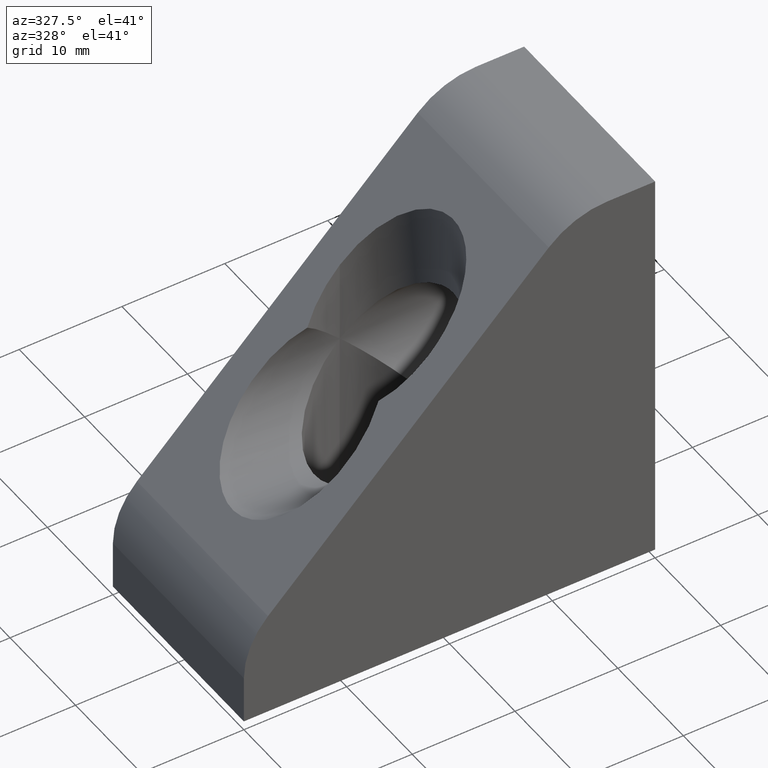
[diagram: clean part render]
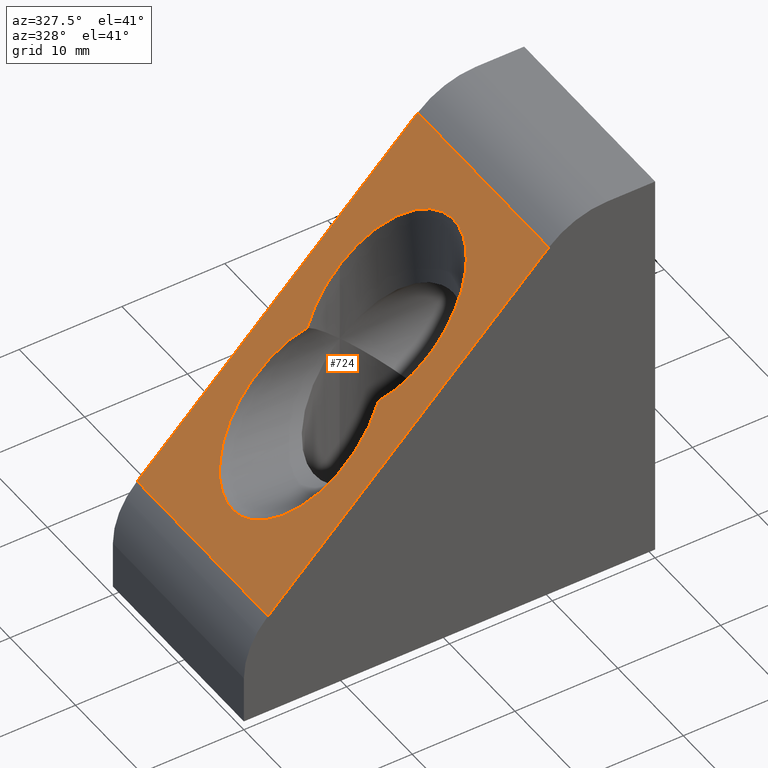
[diagram: same view with one face highlighted and labeled with its STEP entity id]
A machine part, auxiliary view. The second image highlights one B-rep face of the part: STEP entity #724.
In plain terms, the highlighted planar face has unit normal (-0.7071, 0, 0.7071).
Its self-contained STEP definition (entity closure, byte-faithful):
#204=CARTESIAN_POINT('',(-19.999999999999996,6.749999999999998,28.0));
#205=VERTEX_POINT('',#204);
#206=CARTESIAN_POINT('',(-19.999999999999996,-6.750000000000000,28.0));
#207=VERTEX_POINT('',#206);
#208=CARTESIAN_POINT('',(-19.999999999999996,6.749999999999998,28.0));
#209=CARTESIAN_POINT('',(-6.500000000000004,6.749999999999996,41.499999999999986));
#210=CARTESIAN_POINT('',(-6.500000000000004,-6.749999999999996,41.499999999999986));
#211=CARTESIAN_POINT('',(-19.999999999999996,-6.750000000000000,28.0));
#219=(BOUNDED_CURVE()B_SPLINE_CURVE(3,(#208,#209,#210,#211),.UNSPECIFIED.,.F.,.U.)B_SPLINE_CURVE_WITH_KNOTS((4,4),(1.570796326794897,4.712388980384691),.UNSPECIFIED.)CURVE()GEOMETRIC_REPRESENTATION_ITEM()RATIONAL_B_SPLINE_CURVE((1.0,0.333333333333333,0.333333333333333,1.0))REPRESENTATION_ITEM(''));
#220=EDGE_CURVE('',#205,#207,#219,.T.);
#257=CARTESIAN_POINT('',(-23.999999999999996,-5.437140792732894,24.0));
#258=VERTEX_POINT('',#257);
#259=CARTESIAN_POINT('',(-19.999999999999996,-6.750000000000000,28.0));
#260=CARTESIAN_POINT('',(-21.451571303647828,-6.749999999999994,26.548428696352165));
#261=CARTESIAN_POINT('',(-22.830755918722353,-6.297331194894571,25.169244081277640));
#262=CARTESIAN_POINT('',(-23.999999999999996,-5.437140792732894,24.0));
#270=(BOUNDED_CURVE()B_SPLINE_CURVE(3,(#259,#260,#261,#262),.UNSPECIFIED.,.F.,.U.)B_SPLINE_CURVE_WITH_KNOTS((4,4),(4.712388980384691,5.346662628507185),.UNSPECIFIED.)CURVE()GEOMETRIC_REPRESENTATION_ITEM()RATIONAL_B_SPLINE_CURVE((1.0,0.966754790301429,0.966754790301429,1.0))REPRESENTATION_ITEM(''));
#271=EDGE_CURVE('',#207,#258,#270,.T.);
#346=CARTESIAN_POINT('',(-10.343145750507620,-10.0,37.656854249492390));
#347=VERTEX_POINT('',#346);
#355=CARTESIAN_POINT('',(-37.656854249492369,-10.0,10.343145750507613));
#356=VERTEX_POINT('',#355);
#357=CARTESIAN_POINT('',(-37.656854249492383,-10.0,10.343145750507619));
#358=DIRECTION('',(0.707106781186547,0.0,0.707106781186548));
#359=VECTOR('',#358,38.627416997969533);
#360=LINE('',#357,#359);
#361=EDGE_CURVE('',#356,#347,#360,.T.);
#393=CARTESIAN_POINT('',(-37.656854249492369,9.999999999999998,10.343145750507611));
#394=VERTEX_POINT('',#393);
#395=CARTESIAN_POINT('',(-10.343145750507620,9.999999999999998,37.656854249492390));
#396=VERTEX_POINT('',#395);
#397=CARTESIAN_POINT('',(-37.656854249492369,9.999999999999998,10.343145750507617));
#398=DIRECTION('',(0.707106781186548,0.0,0.707106781186548));
#399=VECTOR('',#398,38.627416997969526);
#400=LINE('',#397,#399);
#401=EDGE_CURVE('',#394,#396,#400,.T.);
#473=CARTESIAN_POINT('',(-23.999999999999996,5.437140792732880,24.0));
#474=VERTEX_POINT('',#473);
#475=CARTESIAN_POINT('',(-23.999999999999996,5.437140792732880,24.0));
#476=CARTESIAN_POINT('',(-22.830755918722357,6.297331194894561,25.169244081277633));
#477=CARTESIAN_POINT('',(-21.451571303647828,6.749999999999998,26.548428696352165));
#478=CARTESIAN_POINT('',(-19.999999999999996,6.749999999999998,28.0));
#486=(BOUNDED_CURVE()B_SPLINE_CURVE(3,(#475,#476,#477,#478),.UNSPECIFIED.,.F.,.U.)B_SPLINE_CURVE_WITH_KNOTS((4,4),(0.936522678672400,1.570796326794897),.UNSPECIFIED.)CURVE()GEOMETRIC_REPRESENTATION_ITEM()RATIONAL_B_SPLINE_CURVE((1.0,0.966754790301428,0.966754790301428,1.0))REPRESENTATION_ITEM(''));
#487=EDGE_CURVE('',#474,#205,#486,.T.);
#511=CARTESIAN_POINT('',(-23.999999999999996,-5.437140792732894,24.0));
#512=CARTESIAN_POINT('',(-29.100047709901933,-9.189147889344042,18.899952290098049));
#513=CARTESIAN_POINT('',(-34.749999999999986,-6.331511975531321,13.249999999999995));
#514=CARTESIAN_POINT('',(-34.749999999999986,0.0,13.250000000000000));
#515=CARTESIAN_POINT('',(-34.750000000000000,6.331511975531316,13.250000000000000));
#516=CARTESIAN_POINT('',(-29.100047709901933,9.189147889344033,18.899952290098049));
#517=CARTESIAN_POINT('',(-23.999999999999996,5.437140792732880,24.0));
#525=(BOUNDED_CURVE()B_SPLINE_CURVE(3,(#511,#512,#513,#514,#515,#516,#517),.UNSPECIFIED.,.F.,.U.)B_SPLINE_CURVE_WITH_KNOTS((4,3,4),(0.936522678672401,3.141592653589793,5.346662628507185),.UNSPECIFIED.)CURVE()GEOMETRIC_REPRESENTATION_ITEM()RATIONAL_B_SPLINE_CURVE((1.0,0.634223644616147,0.634223644616147,1.0,0.634223644616147,0.634223644616147,1.0))REPRESENTATION_ITEM(''));
#526=EDGE_CURVE('',#258,#474,#525,.T.);
#697=CARTESIAN_POINT('',(-39.022539674441617,-10.999999999999996,8.977460325558372));
#698=DIRECTION('',(-0.707106781186548,0.0,0.707106781186548));
#699=DIRECTION('',(0.707106781186548,0.0,0.707106781186548));
#700=AXIS2_PLACEMENT_3D('',#697,#698,#699);
#701=PLANE('',#700);
#702=ORIENTED_EDGE('',*,*,#361,.T.);
#703=CARTESIAN_POINT('',(-10.343145750507620,-9.999999999999996,37.656854249492390));
#704=DIRECTION('',(0.0,1.0,0.0));
#705=VECTOR('',#704,19.999999999999993);
#706=LINE('',#703,#705);
#707=EDGE_CURVE('',#347,#396,#706,.T.);
#708=ORIENTED_EDGE('',*,*,#707,.T.);
#709=ORIENTED_EDGE('',*,*,#401,.F.);
#710=CARTESIAN_POINT('',(-37.656854249492369,9.999999999999996,10.343145750507613));
#711=DIRECTION('',(0.0,-1.0,0.0));
#712=VECTOR('',#711,19.999999999999996);
#713=LINE('',#710,#712);
#714=EDGE_CURVE('',#394,#356,#713,.T.);
#715=ORIENTED_EDGE('',*,*,#714,.T.);
#716=EDGE_LOOP('',(#702,#708,#709,#715));
#717=FACE_OUTER_BOUND('',#716,.T.);
#718=ORIENTED_EDGE('',*,*,#487,.T.);
#719=ORIENTED_EDGE('',*,*,#220,.T.);
#720=ORIENTED_EDGE('',*,*,#271,.T.);
#721=ORIENTED_EDGE('',*,*,#526,.T.);
#722=EDGE_LOOP('',(#718,#719,#720,#721));
#723=FACE_BOUND('',#722,.T.);
#724=ADVANCED_FACE('',(#717,#723),#701,.T.);